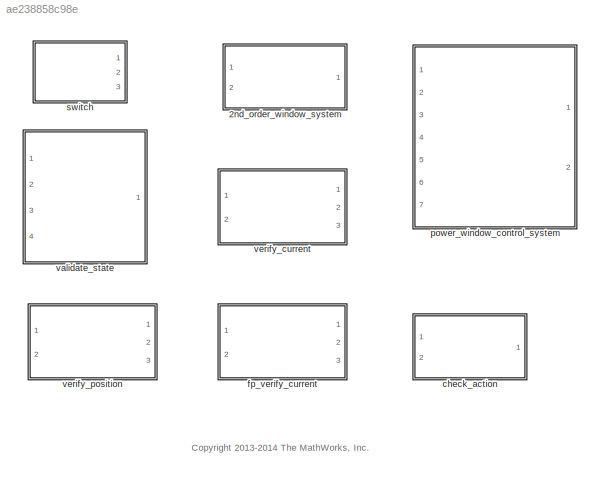
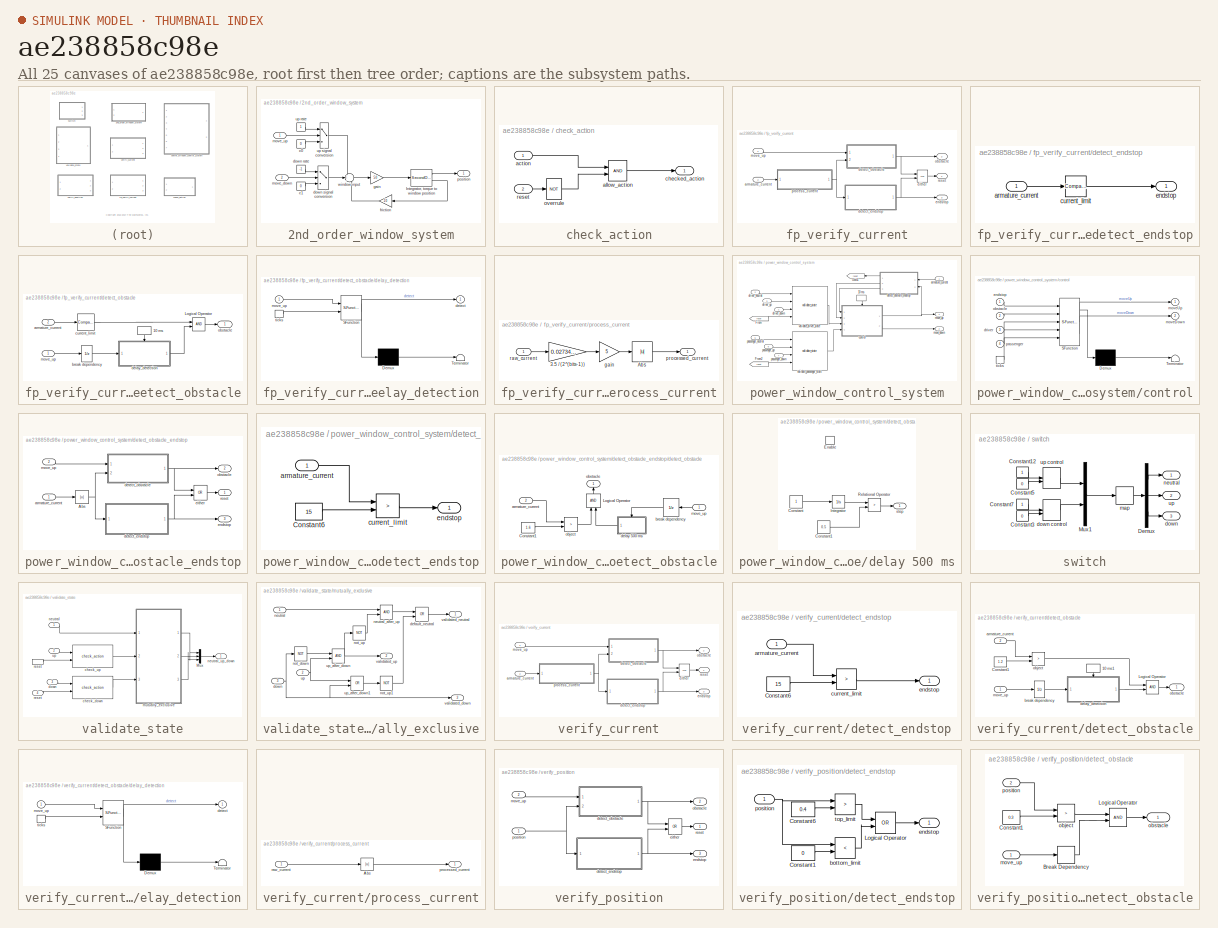
[diagram: thumbnail index - all 25 canvases of the model, root first then tree order]
MODEL slx_ae238858c98e
KIND library
BLOCK [SubSystem] 2nd_order_window_system
  Ports = [2, 1]
  RequestExecContextInheritance = off
BLOCK [SecondOrderIntegrator] 2nd_order_window_system/Integrator, torque to window position 
  Ports = [1, 2]
BLOCK [Constant] 2nd_order_window_system/c0
  Value = 0
BLOCK [Constant] 2nd_order_window_system/c1
  Value = 0
BLOCK [Constant] 2nd_order_window_system/down rate
  Value = -1
BLOCK [Switch] 2nd_order_window_system/down signal conversion
  Threshold = 0.5
BLOCK [Gain] 2nd_order_window_system/friction
  Gain = 10
BLOCK [Gain] 2nd_order_window_system/gain
  Gain = 50
BLOCK [Inport] 2nd_order_window_system/move_down
  IconDisplay = Port number
  Port = 2
BLOCK [Inport] 2nd_order_window_system/move_up
  IconDisplay = Port number
BLOCK [Outport] 2nd_order_window_system/position
  IconDisplay = Port number
BLOCK [Constant] 2nd_order_window_system/up rate
BLOCK [Switch] 2nd_order_window_system/up signal conversion
  Threshold = 0.5
BLOCK [Sum] 2nd_order_window_system/window input
  IconShape = round
  Inputs = ++-
  Ports = [3, 1]
BLOCK [SubSystem] check_action
  Ports = [2, 1]
  RequestExecContextInheritance = off
BLOCK [Inport] check_action/action
  IconDisplay = Port number
BLOCK [Logic] check_action/allow_action
  IconShape = distinctive
  OutDataTypeStr = boolean
  Ports = [2, 1]
BLOCK [Outport] check_action/checked_action
  IconDisplay = Port number
BLOCK [Logic] check_action/overrule
  IconShape = distinctive
  Operator = NOT
  OutDataTypeStr = boolean
  Ports = [1, 1]
BLOCK [Inport] check_action/reset
  IconDisplay = Port number
  Port = 2
BLOCK [SubSystem] fp_verify_current
  Ports = [2, 3]
  RequestExecContextInheritance = off
BLOCK [Inport] fp_verify_current/armature_current
  IconDisplay = Port number
  Port = 2
BLOCK [SubSystem] fp_verify_current/detect_endstop
  Ports = [1, 1]
  RequestExecContextInheritance = off
BLOCK [Inport] fp_verify_current/detect_endstop/armature_current
  IconDisplay = Port number
BLOCK [Reference] fp_verify_current/detect_endstop/current_limit  REF=simulink/Logic and Bit
Operations/Compare
To Constant
  OutDataTypeStr = boolean
  Ports = [1, 1]
  SourceBlock = simulink/Logic and Bit\nOperations/Compare\nTo Constant
  SourceType = Compare To Constant
  ZeroCross = on
  const = 15
  relop = >
BLOCK [Outport] fp_verify_current/detect_endstop/endstop
  IconDisplay = Port number
BLOCK [SubSystem] fp_verify_current/detect_obstacle
  Ports = [2, 1]
  RequestExecContextInheritance = off
BLOCK [DiscretePulseGenerator] fp_verify_current/detect_obstacle/10 ms
  Ports = [0, 1]
  SampleTime = 10e-3
BLOCK [Logic] fp_verify_current/detect_obstacle/Logical Operator
  AllPortsSameDT = off
  IconShape = distinctive
  OutDataTypeStr = boolean
  Ports = [2, 1]
BLOCK [Inport] fp_verify_current/detect_obstacle/armature_current
  IconDisplay = Port number
  Port = 2
BLOCK [UnitDelay] fp_verify_current/detect_obstacle/break dependency
  SampleTime = 0.01
BLOCK [Reference] fp_verify_current/detect_obstacle/current_limit  REF=simulink/Logic and Bit
Operations/Compare
To Constant
  OutDataTypeStr = boolean
  Ports = [1, 1]
  SourceBlock = simulink/Logic and Bit\nOperations/Compare\nTo Constant
  SourceType = Compare To Constant
  ZeroCross = on
  const = 1.1
  relop = >
BLOCK [SubSystem] fp_verify_current/detect_obstacle/delay_detection
  ErrorFcn = Stateflow.Translate.translate
  PermitHierarchicalResolution = ExplicitOnly
  Ports = [1, 1, 0, 1]
  RequestExecContextInheritance = off
  SFBlockType = Chart
  TreatAsAtomicUnit = on
BLOCK [Demux] fp_verify_current/detect_obstacle/delay_detection/ Demux 
  Outputs = 1
  Ports = [1, 1]
BLOCK [S-Function] fp_verify_current/detect_obstacle/delay_detection/ SFunction 
  EnableBusSupport = off
  FunctionName = sf_sfun
  PortCounts = [2 2]
  Ports = [2, 2]
  Tag = Stateflow S-Function slexPowerWindowSALib 4
BLOCK [Terminator] fp_verify_current/detect_obstacle/delay_detection/ Terminator 
BLOCK [Outport] fp_verify_current/detect_obstacle/delay_detection/ detect
  IconDisplay = Port number
BLOCK [Inport] fp_verify_current/detect_obstacle/delay_detection/move_up
  IconDisplay = Port number
BLOCK [TriggerPort] fp_verify_current/detect_obstacle/delay_detection/ticks
  Ports = [0, 1]
  ShowOutputPort = on
  TriggerType = either
BLOCK [Inport] fp_verify_current/detect_obstacle/move_up
  IconDisplay = Port number
  OutDataTypeStr = boolean
BLOCK [Outport] fp_verify_current/detect_obstacle/obstacle
  IconDisplay = Port number
BLOCK [Logic] fp_verify_current/either
  IconShape = distinctive
  Operator = OR
  OutDataTypeStr = boolean
  Ports = [2, 1]
BLOCK [Outport] fp_verify_current/endstop
  IconDisplay = Port number
  Port = 3
BLOCK [Inport] fp_verify_current/move_up
  IconDisplay = Port number
  OutDataTypeStr = boolean
BLOCK [Outport] fp_verify_current/obstacle
  IconDisplay = Port number
  Port = 2
BLOCK [SubSystem] fp_verify_current/process_current
  Ports = [1, 1]
  RequestExecContextInheritance = off
BLOCK [Gain] fp_verify_current/process_current/3.5 // (2^(bits-1))
  Gain = 0.02734375
  OutDataTypeStr = fixdt(1,16,6)
  ParamDataTypeStr = Inherit: Inherit via internal rule
  SaturateOnIntegerOverflow = off
BLOCK [Abs] fp_verify_current/process_current/Abs
  SaturateOnIntegerOverflow = off
BLOCK [Gain] fp_verify_current/process_current/gain
  Gain = 5
  OutDataTypeStr = fixdt(1,16,5)
  ParamDataTypeStr = Inherit: Inherit via internal rule
  SaturateOnIntegerOverflow = off
BLOCK [Outport] fp_verify_current/process_current/processed_current
  IconDisplay = Port number
BLOCK [Inport] fp_verify_current/process_current/raw_current
  IconDisplay = Port number
BLOCK [Outport] fp_verify_current/reset
  IconDisplay = Port number
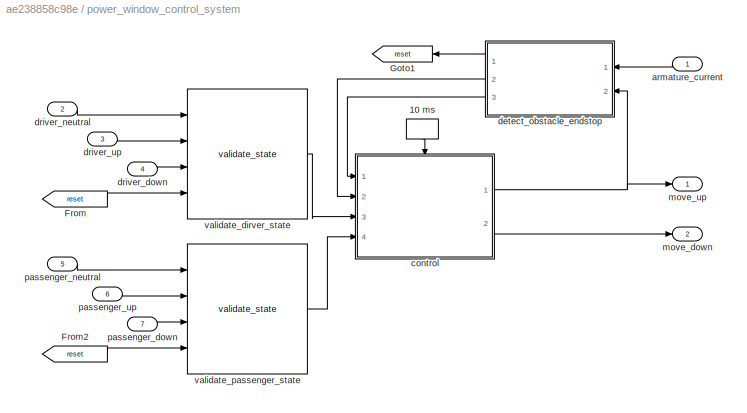
BLOCK [SubSystem] power_window_control_system
  Ports = [7, 2]
  RequestExecContextInheritance = off
BLOCK [DiscretePulseGenerator] power_window_control_system/10 ms
  Period = 1e-2
  Ports = [0, 1]
  PulseType = Time based
  SampleTime = 1e-3
BLOCK [From] power_window_control_system/From
  CloseFcn = tagdialog Close
  GotoTag = reset
BLOCK [From] power_window_control_system/From2
  CloseFcn = tagdialog Close
  GotoTag = reset
BLOCK [Goto] power_window_control_system/Goto1
  GotoTag = reset
BLOCK [Inport] power_window_control_system/armature_current
  IconDisplay = Port number
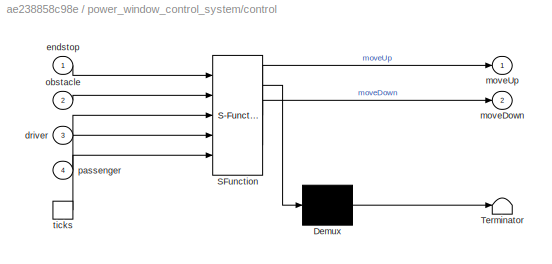
BLOCK [SubSystem] power_window_control_system/control
  ErrorFcn = Stateflow.Translate.translate
  PermitHierarchicalResolution = ExplicitOnly
  Ports = [4, 2, 0, 1]
  RequestExecContextInheritance = off
  SFBlockType = Chart
  TreatAsAtomicUnit = on
BLOCK [Demux] power_window_control_system/control/ Demux 
  Outputs = 1
  Ports = [1, 1]
BLOCK [S-Function] power_window_control_system/control/ SFunction 
  EnableBusSupport = off
  FunctionName = sf_sfun
  PortCounts = [5 3]
  Ports = [5, 3]
  Tag = Stateflow S-Function slexPowerWindowSALib 1
BLOCK [Terminator] power_window_control_system/control/ Terminator 
BLOCK [Inport] power_window_control_system/control/driver
  IconDisplay = Port number
  Port = 3
BLOCK [Inport] power_window_control_system/control/endstop
  IconDisplay = Port number
BLOCK [Outport] power_window_control_system/control/moveDown
  IconDisplay = Port number
  Port = 2
BLOCK [Outport] power_window_control_system/control/moveUp
  IconDisplay = Port number
BLOCK [Inport] power_window_control_system/control/obstacle
  IconDisplay = Port number
  Port = 2
BLOCK [Inport] power_window_control_system/control/passenger
  IconDisplay = Port number
  Port = 4
BLOCK [TriggerPort] power_window_control_system/control/ticks
  Ports = [0, 1]
  ShowOutputPort = on
BLOCK [SubSystem] power_window_control_system/detect_obstacle_endstop
  Ports = [2, 3]
  RequestExecContextInheritance = off
BLOCK [Abs] power_window_control_system/detect_obstacle_endstop/Abs
BLOCK [Inport] power_window_control_system/detect_obstacle_endstop/armature_current
  IconDisplay = Port number
BLOCK [SubSystem] power_window_control_system/detect_obstacle_endstop/detect_endstop
  Ports = [1, 1]
  RequestExecContextInheritance = off
BLOCK [Constant] power_window_control_system/detect_obstacle_endstop/detect_endstop/Constant6
  Value = 15
BLOCK [Inport] power_window_control_system/detect_obstacle_endstop/detect_endstop/armature_current
  IconDisplay = Port number
BLOCK [RelationalOperator] power_window_control_system/detect_obstacle_endstop/detect_endstop/current_limit
  Operator = >
  OutDataTypeStr = boolean
  Ports = [2, 1]
BLOCK [Outport] power_window_control_system/detect_obstacle_endstop/detect_endstop/endstop
  IconDisplay = Port number
BLOCK [SubSystem] power_window_control_system/detect_obstacle_endstop/detect_obstacle
  Ports = [2, 1]
  RequestExecContextInheritance = off
BLOCK [Constant] power_window_control_system/detect_obstacle_endstop/detect_obstacle/Constant1
  Value = 1.6
BLOCK [Logic] power_window_control_system/detect_obstacle_endstop/detect_obstacle/Logical Operator
  AllPortsSameDT = off
  IconShape = distinctive
  OutDataTypeStr = boolean
  Ports = [2, 1]
BLOCK [Inport] power_window_control_system/detect_obstacle_endstop/detect_obstacle/armature_current
  IconDisplay = Port number
  Port = 2
BLOCK [UnitDelay] power_window_control_system/detect_obstacle_endstop/detect_obstacle/break dependency
  SampleTime = 0.01
BLOCK [SubSystem] power_window_control_system/detect_obstacle_endstop/detect_obstacle/delay 500 ms
  Ports = [0, 1, 1]
  RequestExecContextInheritance = off
  TreatAsAtomicUnit = on
BLOCK [Constant] power_window_control_system/detect_obstacle_endstop/detect_obstacle/delay 500 ms/Constant
BLOCK [Constant] power_window_control_system/detect_obstacle_endstop/detect_obstacle/delay 500 ms/Constant1
  Value = 0.5
BLOCK [EnablePort] power_window_control_system/detect_obstacle_endstop/detect_obstacle/delay 500 ms/Enable
  Ports = []
  StatesWhenEnabling = reset
BLOCK [Integrator] power_window_control_system/detect_obstacle_endstop/detect_obstacle/delay 500 ms/Integrator
  Ports = [1, 1]
BLOCK [RelationalOperator] power_window_control_system/detect_obstacle_endstop/detect_obstacle/delay 500 ms/Relational Operator
  Operator = >
  OutDataTypeStr = boolean
  Ports = [2, 1]
BLOCK [Outport] power_window_control_system/detect_obstacle_endstop/detect_obstacle/delay 500 ms/step
  IconDisplay = Port number
  InitialOutput = 0
  OutputWhenDisabled = reset
BLOCK [Inport] power_window_control_system/detect_obstacle_endstop/detect_obstacle/move_up
  IconDisplay = Port number
BLOCK [RelationalOperator] power_window_control_system/detect_obstacle_endstop/detect_obstacle/object
  Operator = >
  OutDataTypeStr = boolean
  Ports = [2, 1]
BLOCK [Outport] power_window_control_system/detect_obstacle_endstop/detect_obstacle/obstacle
  IconDisplay = Port number
BLOCK [Logic] power_window_control_system/detect_obstacle_endstop/either
  IconShape = distinctive
  Operator = OR
  OutDataTypeStr = boolean
  Ports = [2, 1]
BLOCK [Outport] power_window_control_system/detect_obstacle_endstop/endstop
  IconDisplay = Port number
  Port = 3
BLOCK [Inport] power_window_control_system/detect_obstacle_endstop/move_up
  IconDisplay = Port number
  Port = 2
BLOCK [Outport] power_window_control_system/detect_obstacle_endstop/obstacle
  IconDisplay = Port number
  Port = 2
BLOCK [Outport] power_window_control_system/detect_obstacle_endstop/reset
  IconDisplay = Port number
BLOCK [Inport] power_window_control_system/driver_down
  IconDisplay = Port number
  Port = 4
BLOCK [Inport] power_window_control_system/driver_neutral
  IconDisplay = Port number
  Port = 2
BLOCK [Inport] power_window_control_system/driver_up
  IconDisplay = Port number
  Port = 3
BLOCK [Outport] power_window_control_system/move_down
  IconDisplay = Port number
  Port = 2
BLOCK [Outport] power_window_control_system/move_up
  IconDisplay = Port number
BLOCK [Inport] power_window_control_system/passenger_down
  IconDisplay = Port number
  Port = 7
BLOCK [Inport] power_window_control_system/passenger_neutral
  IconDisplay = Port number
  Port = 5
BLOCK [Inport] power_window_control_system/passenger_up
  IconDisplay = Port number
  Port = 6
BLOCK [Reference] power_window_control_system/validate_dirver_state  REF=slexPowerWindowSALib/validate_state
  Ports = [4, 1]
  SourceBlock = slexPowerWindowSALib/validate_state
  SourceType = SubSystem
BLOCK [Reference] power_window_control_system/validate_passenger_state  REF=slexPowerWindowSALib/validate_state
  Ports = [4, 1]
  SourceBlock = slexPowerWindowSALib/validate_state
  SourceType = SubSystem
BLOCK [SubSystem] switch
  Ports = [0, 3]
  RequestExecContextInheritance = off
BLOCK [Constant] switch/Constant12
  OutDataTypeStr = boolean
BLOCK [Constant] switch/Constant3
  OutDataTypeStr = boolean
  Value = 0
BLOCK [Constant] switch/Constant5
  OutDataTypeStr = boolean
  Value = 0
BLOCK [Constant] switch/Constant7
  OutDataTypeStr = boolean
BLOCK [Demux] switch/Demux
  Outputs = 3
  Ports = [1, 3]
BLOCK [Mux] switch/Mux1
  DisplayOption = bar
  Inputs = 2
  Ports = [2, 1]
BLOCK [Outport] switch/down
  IconDisplay = Port number
  Port = 3
BLOCK [ManualSwitch] switch/down control
  CurrentSetting = 0
BLOCK [CombinatorialLogic] switch/map
  TruthTable = [1 0 0;0 0 1;0 1 0;1 0 0]
BLOCK [Outport] switch/neutral
  IconDisplay = Port number
BLOCK [Outport] switch/up
  IconDisplay = Port number
  Port = 2
BLOCK [ManualSwitch] switch/up control
BLOCK [SubSystem] validate_state
  Ports = [4, 1]
  RequestExecContextInheritance = off
BLOCK [Mux] validate_state/Mux
  DisplayOption = bar
  Inputs = 3
  Ports = [3, 1]
BLOCK [Reference] validate_state/check_down  REF=slexPowerWindowSALib/check_action
  Ports = [2, 1]
  SourceBlock = slexPowerWindowSALib/check_action
  SourceType = SubSystem
BLOCK [Reference] validate_state/check_up  REF=slexPowerWindowSALib/check_action
  Ports = [2, 1]
  SourceBlock = slexPowerWindowSALib/check_action
  SourceType = SubSystem
BLOCK [Inport] validate_state/down
  IconDisplay = Port number
  Port = 3
BLOCK [SubSystem] validate_state/mutually_exclusive
  Ports = [3, 3]
  RequestExecContextInheritance = off
BLOCK [Logic] validate_state/mutually_exclusive/default_neutral
  IconShape = distinctive
  Operator = OR
  OutDataTypeStr = boolean
  Ports = [2, 1]
BLOCK [Inport] validate_state/mutually_exclusive/down
  IconDisplay = Port number
  Port = 3
BLOCK [Inport] validate_state/mutually_exclusive/neutral
  IconDisplay = Port number
BLOCK [Logic] validate_state/mutually_exclusive/neutral_after_up
  IconShape = distinctive
  OutDataTypeStr = boolean
  Ports = [2, 1]
BLOCK [Logic] validate_state/mutually_exclusive/not_down
  IconShape = distinctive
  Operator = NOT
  OutDataTypeStr = boolean
  Ports = [1, 1]
BLOCK [Logic] validate_state/mutually_exclusive/not_up
  IconShape = distinctive
  Operator = NOT
  OutDataTypeStr = boolean
  Ports = [1, 1]
BLOCK [Logic] validate_state/mutually_exclusive/not_up1
  IconShape = distinctive
  Operator = NOT
  OutDataTypeStr = boolean
  Ports = [1, 1]
BLOCK [Inport] validate_state/mutually_exclusive/up
  IconDisplay = Port number
  Port = 2
BLOCK [Logic] validate_state/mutually_exclusive/up_after_down
  IconShape = distinctive
  OutDataTypeStr = boolean
  Ports = [2, 1]
BLOCK [Logic] validate_state/mutually_exclusive/up_after_down1
  IconShape = distinctive
  Operator = OR
  OutDataTypeStr = boolean
  Ports = [2, 1]
BLOCK [Outport] validate_state/mutually_exclusive/validated_down
  IconDisplay = Port number
  Port = 3
BLOCK [Outport] validate_state/mutually_exclusive/validated_neutral
  IconDisplay = Port number
BLOCK [Outport] validate_state/mutually_exclusive/validated_up
  IconDisplay = Port number
  Port = 2
BLOCK [Inport] validate_state/neutral
  IconDisplay = Port number
BLOCK [Outport] validate_state/neutral_up_down
  IconDisplay = Port number
BLOCK [Inport] validate_state/reset
  IconDisplay = Port number
  Port = 4
BLOCK [InportShadow] validate_state/reset 
  IconDisplay = Port number
  Port = 4
BLOCK [Inport] validate_state/up
  IconDisplay = Port number
  Port = 2
BLOCK [SubSystem] verify_current
  Ports = [2, 3]
  RequestExecContextInheritance = off
BLOCK [Inport] verify_current/armature_current
  IconDisplay = Port number
  Port = 2
BLOCK [SubSystem] verify_current/detect_endstop
  Ports = [1, 1]
  RequestExecContextInheritance = off
BLOCK [Constant] verify_current/detect_endstop/Constant6
  Value = 15
BLOCK [Inport] verify_current/detect_endstop/armature_current
  IconDisplay = Port number
BLOCK [RelationalOperator] verify_current/detect_endstop/current_limit
  Operator = >
  OutDataTypeStr = boolean
  Ports = [2, 1]
BLOCK [Outport] verify_current/detect_endstop/endstop
  IconDisplay = Port number
BLOCK [SubSystem] verify_current/detect_obstacle
  Ports = [2, 1]
  RequestExecContextInheritance = off
BLOCK [DiscretePulseGenerator] verify_current/detect_obstacle/10 ms1
  Ports = [0, 1]
  SampleTime = 10e-3
BLOCK [Constant] verify_current/detect_obstacle/Constant1
  Value = 1.2
BLOCK [Logic] verify_current/detect_obstacle/Logical Operator
  AllPortsSameDT = off
  IconShape = distinctive
  OutDataTypeStr = boolean
  Ports = [2, 1]
BLOCK [Inport] verify_current/detect_obstacle/armature_current
  IconDisplay = Port number
  Port = 2
BLOCK [UnitDelay] verify_current/detect_obstacle/break dependency
  SampleTime = 0.01
BLOCK [SubSystem] verify_current/detect_obstacle/delay_detection
  ErrorFcn = Stateflow.Translate.translate
  PermitHierarchicalResolution = ExplicitOnly
  Ports = [1, 1, 0, 1]
  RequestExecContextInheritance = off
  SFBlockType = Chart
  TreatAsAtomicUnit = on
BLOCK [Demux] verify_current/detect_obstacle/delay_detection/ Demux 
  Outputs = 1
  Ports = [1, 1]
BLOCK [S-Function] verify_current/detect_obstacle/delay_detection/ SFunction 
  EnableBusSupport = off
  FunctionName = sf_sfun
  PortCounts = [2 2]
  Ports = [2, 2]
  Tag = Stateflow S-Function slexPowerWindowSALib 3
BLOCK [Terminator] verify_current/detect_obstacle/delay_detection/ Terminator 
BLOCK [Outport] verify_current/detect_obstacle/delay_detection/ detect
  IconDisplay = Port number
BLOCK [Inport] verify_current/detect_obstacle/delay_detection/move_up
  IconDisplay = Port number
BLOCK [TriggerPort] verify_current/detect_obstacle/delay_detection/ticks
  Ports = [0, 1]
  ShowOutputPort = on
  TriggerType = either
BLOCK [Inport] verify_current/detect_obstacle/move_up
  IconDisplay = Port number
  OutDataTypeStr = boolean
BLOCK [RelationalOperator] verify_current/detect_obstacle/object
  Operator = >
  OutDataTypeStr = boolean
  Ports = [2, 1]
BLOCK [Outport] verify_current/detect_obstacle/obstacle
  IconDisplay = Port number
BLOCK [Logic] verify_current/either
  IconShape = distinctive
  Operator = OR
  OutDataTypeStr = boolean
  Ports = [2, 1]
BLOCK [Outport] verify_current/endstop
  IconDisplay = Port number
  Port = 3
BLOCK [Inport] verify_current/move_up
  IconDisplay = Port number
  OutDataTypeStr = boolean
BLOCK [Outport] verify_current/obstacle
  IconDisplay = Port number
  Port = 2
BLOCK [SubSystem] verify_current/process_current
  Ports = [1, 1]
  RequestExecContextInheritance = off
BLOCK [Abs] verify_current/process_current/Abs
BLOCK [Outport] verify_current/process_current/processed_current
  IconDisplay = Port number
BLOCK [Inport] verify_current/process_current/raw_current
  IconDisplay = Port number
BLOCK [Outport] verify_current/reset
  IconDisplay = Port number
BLOCK [SubSystem] verify_position
  Ports = [2, 3]
  RequestExecContextInheritance = off
BLOCK [SubSystem] verify_position/detect_endstop
  Ports = [1, 1]
  RequestExecContextInheritance = off
BLOCK [Constant] verify_position/detect_endstop/Constant1
  Value = 0
BLOCK [Constant] verify_position/detect_endstop/Constant6
  Value = 0.4
BLOCK [Logic] verify_position/detect_endstop/Logical Operator
  AllPortsSameDT = off
  IconShape = distinctive
  Operator = OR
  OutDataTypeStr = boolean
  Ports = [2, 1]
BLOCK [RelationalOperator] verify_position/detect_endstop/bottom_limit
  Operator = <
  OutDataTypeStr = boolean
  Ports = [2, 1]
BLOCK [Outport] verify_position/detect_endstop/endstop
  IconDisplay = Port number
BLOCK [Inport] verify_position/detect_endstop/position
  IconDisplay = Port number
BLOCK [RelationalOperator] verify_position/detect_endstop/top_limit
  Operator = >
  OutDataTypeStr = boolean
  Ports = [2, 1]
BLOCK [SubSystem] verify_position/detect_obstacle
  Ports = [2, 1]
  RequestExecContextInheritance = off
BLOCK [Memory] verify_position/detect_obstacle/Break Dependency
BLOCK [Constant] verify_position/detect_obstacle/Constant1
  Value = 0.3
BLOCK [Logic] verify_position/detect_obstacle/Logical Operator
  AllPortsSameDT = off
  IconShape = distinctive
  OutDataTypeStr = boolean
  Ports = [2, 1]
BLOCK [Inport] verify_position/detect_obstacle/move_up
  IconDisplay = Port number
  OutDataTypeStr = boolean
BLOCK [RelationalOperator] verify_position/detect_obstacle/object
  Operator = >
  OutDataTypeStr = boolean
  Ports = [2, 1]
BLOCK [Outport] verify_position/detect_obstacle/obstacle
  IconDisplay = Port number
BLOCK [Inport] verify_position/detect_obstacle/position
  IconDisplay = Port number
  Port = 2
BLOCK [Logic] verify_position/either
  IconShape = distinctive
  Operator = OR
  OutDataTypeStr = boolean
  Ports = [2, 1]
BLOCK [Outport] verify_position/endstop
  IconDisplay = Port number
  Port = 3
BLOCK [Inport] verify_position/move_up
  IconDisplay = Port number
  OutDataTypeStr = boolean
  Port = 2
BLOCK [Outport] verify_position/obstacle
  IconDisplay = Port number
  Port = 2
BLOCK [Inport] verify_position/position
  IconDisplay = Port number
BLOCK [Outport] verify_position/reset
  IconDisplay = Port number
ANNOTATION (root): <copyright redacted>
LINE 2nd_order_window_system/Integrator, torque to window position :1 -> 2nd_order_window_system/position:1
LINE 2nd_order_window_system/Integrator, torque to window position :2 -> 2nd_order_window_system/friction:1
LINE 2nd_order_window_system/c0:1 -> 2nd_order_window_system/up signal conversion:3
LINE 2nd_order_window_system/c1:1 -> 2nd_order_window_system/down signal conversion:3
LINE 2nd_order_window_system/down rate:1 -> 2nd_order_window_system/down signal conversion:1
LINE 2nd_order_window_system/down signal conversion:1 -> 2nd_order_window_system/window input:2
LINE 2nd_order_window_system/friction:1 -> 2nd_order_window_system/window input:3
LINE 2nd_order_window_system/gain:1 -> 2nd_order_window_system/Integrator, torque to window position :1
LINE 2nd_order_window_system/move_down:1 -> 2nd_order_window_system/down signal conversion:2
LINE 2nd_order_window_system/move_up:1 -> 2nd_order_window_system/up signal conversion:2
LINE 2nd_order_window_system/up rate:1 -> 2nd_order_window_system/up signal conversion:1
LINE 2nd_order_window_system/up signal conversion:1 -> 2nd_order_window_system/window input:1
LINE 2nd_order_window_system/window input:1 -> 2nd_order_window_system/gain:1
LINE check_action/action:1 -> check_action/allow_action:1
LINE check_action/allow_action:1 -> check_action/checked_action:1
LINE check_action/overrule:1 -> check_action/allow_action:2
LINE check_action/reset:1 -> check_action/overrule:1
LINE fp_verify_current/armature_current:1 -> fp_verify_current/process_current:1
LINE fp_verify_current/detect_endstop/armature_current:1 -> fp_verify_current/detect_endstop/current_limit:1
LINE fp_verify_current/detect_endstop/current_limit:1 -> fp_verify_current/detect_endstop/endstop:1
NET fp_verify_current/detect_endstop:1 -> fp_verify_current/either:2, fp_verify_current/endstop:1
LINE fp_verify_current/detect_obstacle/10 ms:1 -> fp_verify_current/detect_obstacle/delay_detection:trigger
LINE fp_verify_current/detect_obstacle/Logical Operator:1 -> fp_verify_current/detect_obstacle/obstacle:1
LINE fp_verify_current/detect_obstacle/armature_current:1 -> fp_verify_current/detect_obstacle/current_limit:1
LINE fp_verify_current/detect_obstacle/break dependency:1 -> fp_verify_current/detect_obstacle/delay_detection:1
LINE fp_verify_current/detect_obstacle/current_limit:1 -> fp_verify_current/detect_obstacle/Logical Operator:1
LINE fp_verify_current/detect_obstacle/delay_detection:1 -> fp_verify_current/detect_obstacle/Logical Operator:2
LINE fp_verify_current/detect_obstacle/move_up:1 -> fp_verify_current/detect_obstacle/break dependency:1
NET fp_verify_current/detect_obstacle:1 -> fp_verify_current/either:1, fp_verify_current/obstacle:1
LINE fp_verify_current/either:1 -> fp_verify_current/reset:1
LINE fp_verify_current/move_up:1 -> fp_verify_current/detect_obstacle:1
LINE fp_verify_current/process_current/3.5 // (2^(bits-1)):1 -> fp_verify_current/process_current/gain:1
LINE fp_verify_current/process_current/Abs:1 -> fp_verify_current/process_current/processed_current:1
LINE fp_verify_current/process_current/gain:1 -> fp_verify_current/process_current/Abs:1
LINE fp_verify_current/process_current/raw_current:1 -> fp_verify_current/process_current/3.5 // (2^(bits-1)):1
NET fp_verify_current/process_current:1 -> fp_verify_current/detect_endstop:1, fp_verify_current/detect_obstacle:2
LINE power_window_control_system/10 ms:1 -> power_window_control_system/control:trigger
LINE power_window_control_system/From2:1 -> power_window_control_system/validate_passenger_state:4
LINE power_window_control_system/From:1 -> power_window_control_system/validate_dirver_state:4
LINE power_window_control_system/armature_current:1 -> power_window_control_system/detect_obstacle_endstop:1
NET power_window_control_system/control:1 -> power_window_control_system/detect_obstacle_endstop:2, power_window_control_system/move_up:1
LINE power_window_control_system/control:2 -> power_window_control_system/move_down:1
NET power_window_control_system/detect_obstacle_endstop/Abs:1 -> power_window_control_system/detect_obstacle_endstop/detect_endstop:1, power_window_control_system/detect_obstacle_endstop/detect_obstacle:2
LINE power_window_control_system/detect_obstacle_endstop/armature_current:1 -> power_window_control_system/detect_obstacle_endstop/Abs:1
LINE power_window_control_system/detect_obstacle_endstop/detect_endstop/Constant6:1 -> power_window_control_system/detect_obstacle_endstop/detect_endstop/current_limit:2
LINE power_window_control_system/detect_obstacle_endstop/detect_endstop/armature_current:1 -> power_window_control_system/detect_obstacle_endstop/detect_endstop/current_limit:1
LINE power_window_control_system/detect_obstacle_endstop/detect_endstop/current_limit:1 -> power_window_control_system/detect_obstacle_endstop/detect_endstop/endstop:1
NET power_window_control_system/detect_obstacle_endstop/detect_endstop:1 -> power_window_control_system/detect_obstacle_endstop/either:2, power_window_control_system/detect_obstacle_endstop/endstop:1
LINE power_window_control_system/detect_obstacle_endstop/detect_obstacle/Constant1:1 -> power_window_control_system/detect_obstacle_endstop/detect_obstacle/object:2
LINE power_window_control_system/detect_obstacle_endstop/detect_obstacle/Logical Operator:1 -> power_window_control_system/detect_obstacle_endstop/detect_obstacle/obstacle:1
LINE power_window_control_system/detect_obstacle_endstop/detect_obstacle/armature_current:1 -> power_window_control_system/detect_obstacle_endstop/detect_obstacle/object:1
LINE power_window_control_system/detect_obstacle_endstop/detect_obstacle/break dependency:1 -> power_window_control_system/detect_obstacle_endstop/detect_obstacle/delay 500 ms:enable
LINE power_window_control_system/detect_obstacle_endstop/detect_obstacle/delay 500 ms/Constant1:1 -> power_window_control_system/detect_obstacle_endstop/detect_obstacle/delay 500 ms/Relational Operator:2
LINE power_window_control_system/detect_obstacle_endstop/detect_obstacle/delay 500 ms/Constant:1 -> power_window_control_system/detect_obstacle_endstop/detect_obstacle/delay 500 ms/Integrator:1
LINE power_window_control_system/detect_obstacle_endstop/detect_obstacle/delay 500 ms/Integrator:1 -> power_window_control_system/detect_obstacle_endstop/detect_obstacle/delay 500 ms/Relational Operator:1
LINE power_window_control_system/detect_obstacle_endstop/detect_obstacle/delay 500 ms/Relational Operator:1 -> power_window_control_system/detect_obstacle_endstop/detect_obstacle/delay 500 ms/step:1
LINE power_window_control_system/detect_obstacle_endstop/detect_obstacle/delay 500 ms:1 -> power_window_control_system/detect_obstacle_endstop/detect_obstacle/Logical Operator:2
LINE power_window_control_system/detect_obstacle_endstop/detect_obstacle/move_up:1 -> power_window_control_system/detect_obstacle_endstop/detect_obstacle/break dependency:1
LINE power_window_control_system/detect_obstacle_endstop/detect_obstacle/object:1 -> power_window_control_system/detect_obstacle_endstop/detect_obstacle/Logical Operator:1
NET power_window_control_system/detect_obstacle_endstop/detect_obstacle:1 -> power_window_control_system/detect_obstacle_endstop/either:1, power_window_control_system/detect_obstacle_endstop/obstacle:1
LINE power_window_control_system/detect_obstacle_endstop/either:1 -> power_window_control_system/detect_obstacle_endstop/reset:1
LINE power_window_control_system/detect_obstacle_endstop/move_up:1 -> power_window_control_system/detect_obstacle_endstop/detect_obstacle:1
LINE power_window_control_system/detect_obstacle_endstop:1 -> power_window_control_system/Goto1:1
LINE power_window_control_system/detect_obstacle_endstop:2 -> power_window_control_system/control:2
LINE power_window_control_system/detect_obstacle_endstop:3 -> power_window_control_system/control:1
LINE power_window_control_system/driver_down:1 -> power_window_control_system/validate_dirver_state:3
LINE power_window_control_system/driver_neutral:1 -> power_window_control_system/validate_dirver_state:1
LINE power_window_control_system/driver_up:1 -> power_window_control_system/validate_dirver_state:2
LINE power_window_control_system/passenger_down:1 -> power_window_control_system/validate_passenger_state:3
LINE power_window_control_system/passenger_neutral:1 -> power_window_control_system/validate_passenger_state:1
LINE power_window_control_system/passenger_up:1 -> power_window_control_system/validate_passenger_state:2
LINE power_window_control_system/validate_dirver_state:1 -> power_window_control_system/control:3
LINE power_window_control_system/validate_passenger_state:1 -> power_window_control_system/control:4
LINE switch/Constant12:1 -> switch/up control:1
LINE switch/Constant3:1 -> switch/down control:2
LINE switch/Constant5:1 -> switch/up control:2
LINE switch/Constant7:1 -> switch/down control:1
LINE switch/Demux:1 -> switch/neutral:1
LINE switch/Demux:2 -> switch/up:1
LINE switch/Demux:3 -> switch/down:1
LINE switch/Mux1:1 -> switch/map:1
LINE switch/down control:1 -> switch/Mux1:2
LINE switch/map:1 -> switch/Demux:1
LINE switch/up control:1 -> switch/Mux1:1
LINE validate_state/Mux:1 -> validate_state/neutral_up_down:1
LINE validate_state/check_down:1 -> validate_state/mutually_exclusive:3
LINE validate_state/check_up:1 -> validate_state/mutually_exclusive:2
LINE validate_state/down:1 -> validate_state/check_down:1
LINE validate_state/mutually_exclusive/default_neutral:1 -> validate_state/mutually_exclusive/validated_neutral:1
NET validate_state/mutually_exclusive/down:1 -> validate_state/mutually_exclusive/not_down:1, validate_state/mutually_exclusive/up_after_down1:2, validate_state/mutually_exclusive/validated_down:1
LINE validate_state/mutually_exclusive/neutral:1 -> validate_state/mutually_exclusive/neutral_after_up:1
LINE validate_state/mutually_exclusive/neutral_after_up:1 -> validate_state/mutually_exclusive/default_neutral:1
LINE validate_state/mutually_exclusive/not_down:1 -> validate_state/mutually_exclusive/up_after_down:1
LINE validate_state/mutually_exclusive/not_up1:1 -> validate_state/mutually_exclusive/default_neutral:2
LINE validate_state/mutually_exclusive/not_up:1 -> validate_state/mutually_exclusive/neutral_after_up:2
NET validate_state/mutually_exclusive/up:1 -> validate_state/mutually_exclusive/up_after_down1:1, validate_state/mutually_exclusive/up_after_down:2
LINE validate_state/mutually_exclusive/up_after_down1:1 -> validate_state/mutually_exclusive/not_up1:1
NET validate_state/mutually_exclusive/up_after_down:1 -> validate_state/mutually_exclusive/not_up:1, validate_state/mutually_exclusive/validated_up:1
LINE validate_state/mutually_exclusive:1 -> validate_state/Mux:1
LINE validate_state/mutually_exclusive:2 -> validate_state/Mux:2
LINE validate_state/mutually_exclusive:3 -> validate_state/Mux:3
LINE validate_state/neutral:1 -> validate_state/mutually_exclusive:1
LINE validate_state/reset :1 -> validate_state/check_up:2
LINE validate_state/reset:1 -> validate_state/check_down:2
LINE validate_state/up:1 -> validate_state/check_up:1
LINE verify_current/armature_current:1 -> verify_current/process_current:1
LINE verify_current/detect_endstop/Constant6:1 -> verify_current/detect_endstop/current_limit:2
LINE verify_current/detect_endstop/armature_current:1 -> verify_current/detect_endstop/current_limit:1
LINE verify_current/detect_endstop/current_limit:1 -> verify_current/detect_endstop/endstop:1
NET verify_current/detect_endstop:1 -> verify_current/either:2, verify_current/endstop:1
LINE verify_current/detect_obstacle/10 ms1:1 -> verify_current/detect_obstacle/delay_detection:trigger
LINE verify_current/detect_obstacle/Constant1:1 -> verify_current/detect_obstacle/object:2
LINE verify_current/detect_obstacle/Logical Operator:1 -> verify_current/detect_obstacle/obstacle:1
LINE verify_current/detect_obstacle/armature_current:1 -> verify_current/detect_obstacle/object:1
LINE verify_current/detect_obstacle/break dependency:1 -> verify_current/detect_obstacle/delay_detection:1
LINE verify_current/detect_obstacle/delay_detection:1 -> verify_current/detect_obstacle/Logical Operator:2
LINE verify_current/detect_obstacle/move_up:1 -> verify_current/detect_obstacle/break dependency:1
LINE verify_current/detect_obstacle/object:1 -> verify_current/detect_obstacle/Logical Operator:1
NET verify_current/detect_obstacle:1 -> verify_current/either:1, verify_current/obstacle:1
LINE verify_current/either:1 -> verify_current/reset:1
LINE verify_current/move_up:1 -> verify_current/detect_obstacle:1
LINE verify_current/process_current/Abs:1 -> verify_current/process_current/processed_current:1
LINE verify_current/process_current/raw_current:1 -> verify_current/process_current/Abs:1
NET verify_current/process_current:1 -> verify_current/detect_endstop:1, verify_current/detect_obstacle:2
LINE verify_position/detect_endstop/Constant1:1 -> verify_position/detect_endstop/bottom_limit:2
LINE verify_position/detect_endstop/Constant6:1 -> verify_position/detect_endstop/top_limit:2
LINE verify_position/detect_endstop/Logical Operator:1 -> verify_position/detect_endstop/endstop:1
LINE verify_position/detect_endstop/bottom_limit:1 -> verify_position/detect_endstop/Logical Operator:2
NET verify_position/detect_endstop/position:1 -> verify_position/detect_endstop/bottom_limit:1, verify_position/detect_endstop/top_limit:1
LINE verify_position/detect_endstop/top_limit:1 -> verify_position/detect_endstop/Logical Operator:1
NET verify_position/detect_endstop:1 -> verify_position/either:2, verify_position/endstop:1
LINE verify_position/detect_obstacle/Break Dependency:1 -> verify_position/detect_obstacle/Logical Operator:2
LINE verify_position/detect_obstacle/Constant1:1 -> verify_position/detect_obstacle/object:2
LINE verify_position/detect_obstacle/Logical Operator:1 -> verify_position/detect_obstacle/obstacle:1
LINE verify_position/detect_obstacle/move_up:1 -> verify_position/detect_obstacle/Break Dependency:1
LINE verify_position/detect_obstacle/object:1 -> verify_position/detect_obstacle/Logical Operator:1
LINE verify_position/detect_obstacle/position:1 -> verify_position/detect_obstacle/object:1
NET verify_position/detect_obstacle:1 -> verify_position/either:1, verify_position/obstacle:1
LINE verify_position/either:1 -> verify_position/reset:1
LINE verify_position/move_up:1 -> verify_position/detect_obstacle:1
NET verify_position/position:1 -> verify_position/detect_endstop:1, verify_position/detect_obstacle:2
note: NET lines group one-source signal fan-out (src -> all destinations, sorted); 1:1 wires keep LINE
CHART power_window_control_system/control states=20 transitions=33
  STATE_LABEL 'safe'
  STATE_LABEL 'driverNeutral\nentry:\nmoveUp = 0;\nmoveDown = 0;'
  STATE_LABEL 'passengerneutral\nentry:\nmoveUp = 0;\nmoveDown = 0;'
  STATE_LABEL 'passengerDown\nentry: moveDown = 1;\nexit: moveDown = 0;'
  STATE_LABEL 'iniPassengerDown'
  STATE_LABEL 'passengerDown'
  STATE_LABEL 'autoPassengerDown'
  STATE_LABEL 'after(100,ticks)'
  STATE_LABEL '[passenger[1]]'
  STATE_LABEL 'passengerUp\nentry: moveUp = 1;\nexit: moveUp = 0;'
  STATE_LABEL 'iniPassengerUp'
  STATE_LABEL 'PassengerUp'
  STATE_LABEL 'autoPassengerUp'
  STATE_LABEL 'after(100,ticks)'
  STATE_LABEL '[passenger[1]]'
  STATE_LABEL '[passenger[2]]'
  STATE_LABEL '[passenger[3]]'
  STATE_LABEL '[passenger[1]]'
  STATE_LABEL '[endstop]'
  STATE_LABEL '[passenger[1]]'
  STATE_LABEL '[endstop]'
  STATE_LABEL '[passenger[2]]'
  STATE_LABEL '[passenger[3]]'
  STATE_LABEL 'driverDown\nentry: moveDown = 1;\nexit: moveDown = 0;'
  STATE_LABEL 'iniDriverDown'
  STATE_LABEL 'autoDriverDown'
  STATE_LABEL 'DriverDown'
  STATE_LABEL 'after(100,ticks)'
  STATE_LABEL '[driver[1]]'
  STATE_LABEL 'driverUp\nentry: moveUp = 1;\nexit: moveUp = 0;'
  STATE_LABEL 'iniDriverUp'
  STATE_LABEL 'DriverUp'
  STATE_LABEL 'autoDriverUp'
  STATE_LABEL 'after(100,ticks)'
  STATE_LABEL '[driver[1]]'
  STATE_LABEL '[driver[3]]'
  STATE_LABEL '[driver[1]]'
  STATE_LABEL '[endstop]'
  STATE_LABEL '[driver[1]]'
  STATE_LABEL '[endstop]'
CHART verify_current/detect_obstacle/delay_detection states=3 transitions=5
  STATE_LABEL 'off'
  STATE_LABEL 'hold'
  STATE_LABEL 'detect'
CHART fp_verify_current/detect_obstacle/delay_detection states=3 transitions=5
  STATE_LABEL 'off'
  STATE_LABEL 'hold'
  STATE_LABEL 'detect'
